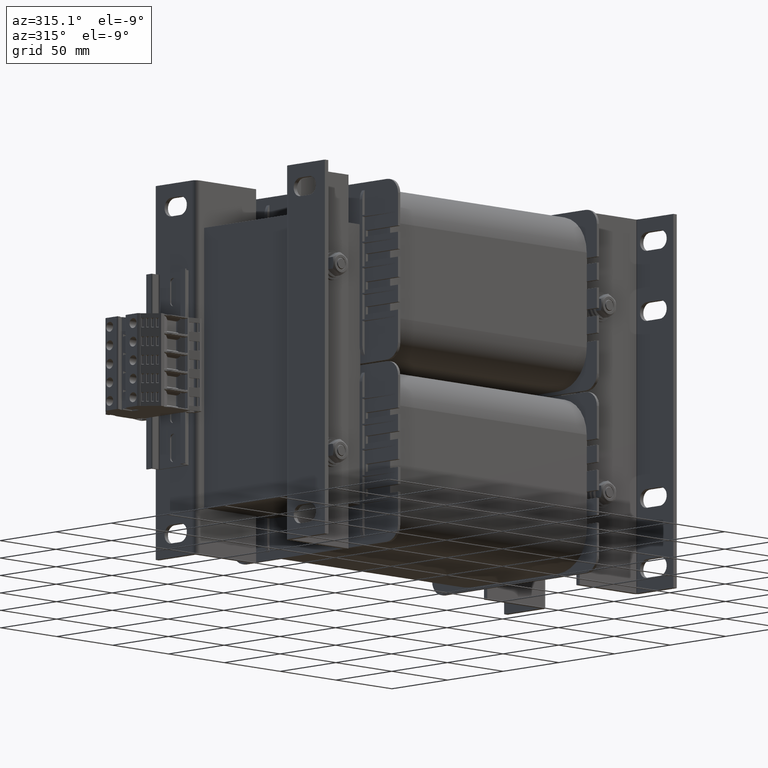
[diagram: clean part render]
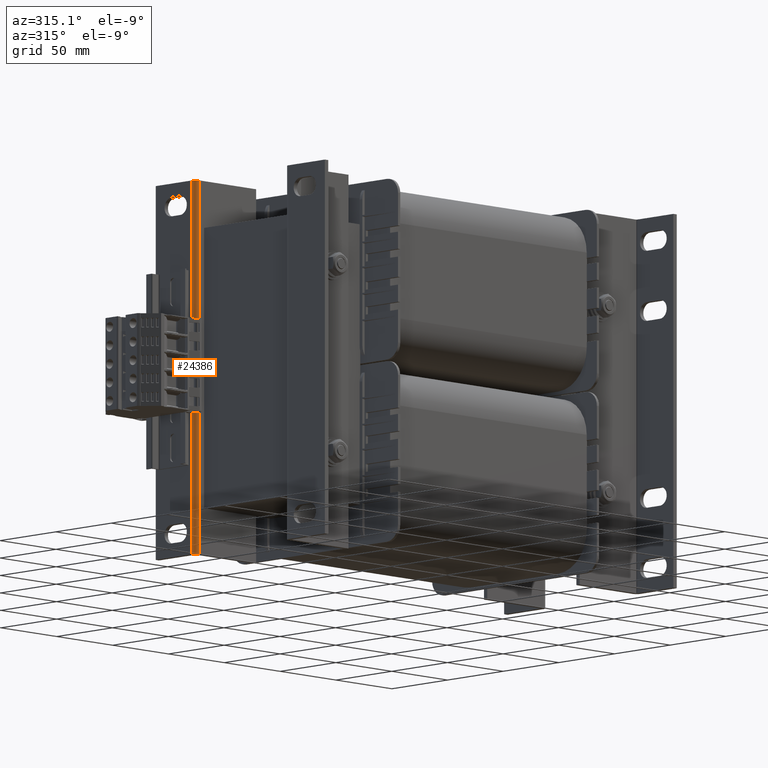
[diagram: same view with one face highlighted and labeled with its STEP entity id]
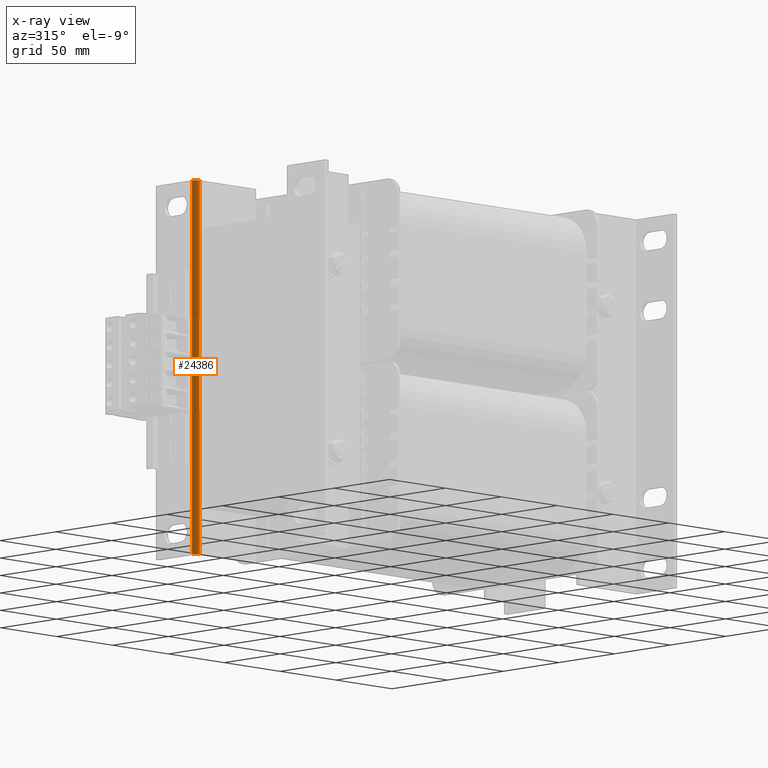
[diagram: x-ray of the same camera — body ghosted, the highlighted face saturated]
A machine part, auxiliary view. The second image highlights one B-rep face of the part: STEP entity #24386.
The next image is the same camera in x-ray: the body ghosted, the highlighted face saturated — about 0% of this face is hidden behind the body in this view.
In plain terms, the highlighted cylindrical surface (edge-blend (fillet) strip) has radius 3.5 mm, axis along (-0, 0, -1).
Its self-contained STEP definition (entity closure, byte-faithful):
#1145=CIRCLE('',#26090,3.5);
#1146=CIRCLE('',#26091,3.5);
#1973=CYLINDRICAL_SURFACE('',#26089,3.5);
#2432=FACE_OUTER_BOUND('',#3810,.T.);
#3810=EDGE_LOOP('',(#16552,#16553,#16554,#16555));
#5280=LINE('',#35690,#7877);
#5281=LINE('',#35694,#7878);
#7877=VECTOR('',#28560,10.);
#7878=VECTOR('',#28563,10.);
#10464=VERTEX_POINT('',#35688);
#10465=VERTEX_POINT('',#35689);
#10466=VERTEX_POINT('',#35691);
#10467=VERTEX_POINT('',#35693);
#12821=EDGE_CURVE('',#10464,#10465,#5280,.T.);
#12822=EDGE_CURVE('',#10466,#10464,#1145,.T.);
#12823=EDGE_CURVE('',#10467,#10466,#5281,.T.);
#12824=EDGE_CURVE('',#10465,#10467,#1146,.T.);
#16552=ORIENTED_EDGE('',*,*,#12821,.F.);
#16553=ORIENTED_EDGE('',*,*,#12822,.F.);
#16554=ORIENTED_EDGE('',*,*,#12823,.F.);
#16555=ORIENTED_EDGE('',*,*,#12824,.F.);
#24386=ADVANCED_FACE('',(#2432),#1973,.T.);
#26089=AXIS2_PLACEMENT_3D('',#35687,#28558,#28559);
#26090=AXIS2_PLACEMENT_3D('',#35692,#28561,#28562);
#26091=AXIS2_PLACEMENT_3D('',#35695,#28564,#28565);
#28558=DIRECTION('center_axis',(-2.96059473233375E-16,0.,-1.));
#28559=DIRECTION('ref_axis',(0.,-1.,0.));
#28560=DIRECTION('',(2.9665254108841E-16,0.,1.));
#28561=DIRECTION('center_axis',(-2.96059473233375E-16,0.,-1.));
#28562=DIRECTION('ref_axis',(0.,-1.,0.));
#28563=DIRECTION('',(-2.96059473233375E-16,0.,-1.));
#28564=DIRECTION('center_axis',(2.96059473233375E-16,0.,1.));
#28565=DIRECTION('ref_axis',(-1.,1.74463618155382E-15,0.));
#35687=CARTESIAN_POINT('Origin',(-50.5,3.5,120.));
#35688=CARTESIAN_POINT('',(-54.,3.50000000000001,5.66691898895079E-15));
#35689=CARTESIAN_POINT('',(-53.9999999999999,3.50000000000001,240.));
#35690=CARTESIAN_POINT('',(-54.,3.50000000000001,120.));
#35691=CARTESIAN_POINT('',(-50.5,-5.55111512312578E-16,0.));
#35692=CARTESIAN_POINT('Origin',(-50.5,3.5,0.));
#35693=CARTESIAN_POINT('',(-50.4999999999999,-5.55111512312578E-16,240.));
#35694=CARTESIAN_POINT('',(-50.5,0.,180.));
#35695=CARTESIAN_POINT('Origin',(-50.4999999999999,3.5,240.));